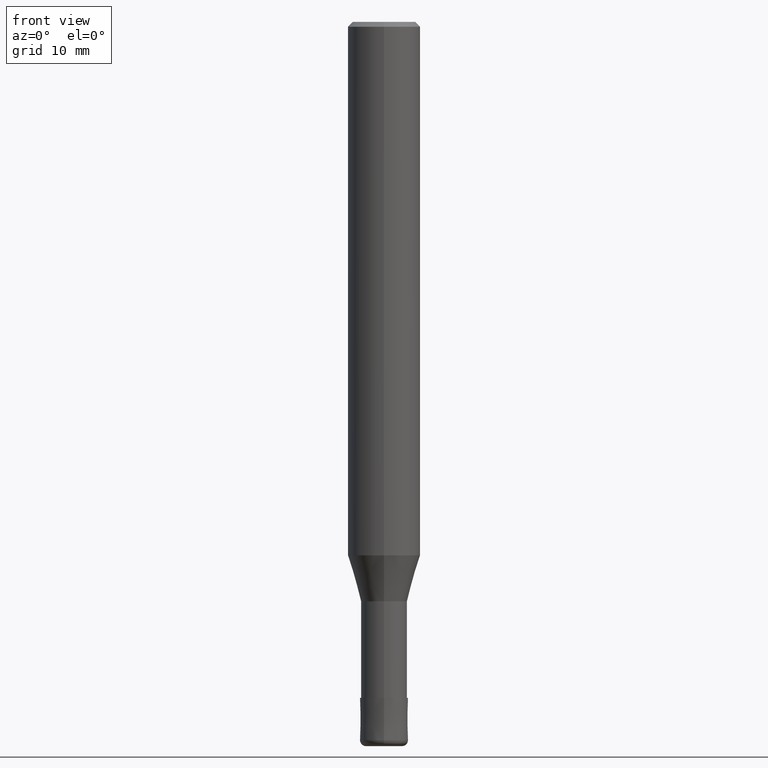
[diagram: clean part render]
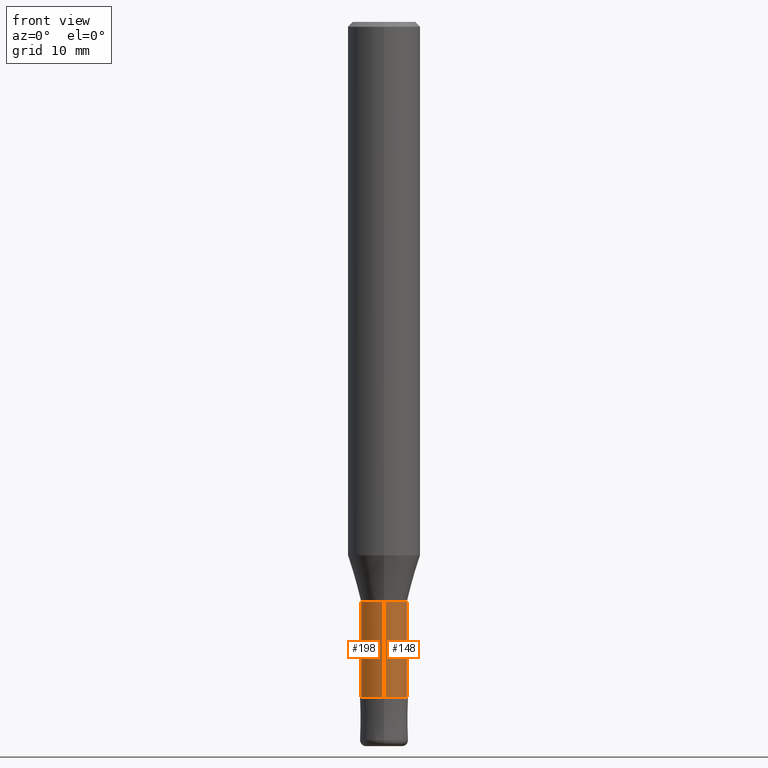
[diagram: same view with one multi-face feature highlighted, each face labeled with its STEP entity id]
A machine part, front view. The highlighted faces form ONE feature: a constant-radius fillet chain: 2 tangent blend faces with common blend radius 1.91 mm. The faces share edges in the B-rep.
Their STEP definitions:
[1] entity #148 (Cylinder):
#102=VERTEX_POINT('',#255);
#140=EDGE_CURVE('',#190,#182,#297,.T.);
#148=ADVANCED_FACE('',(#306),#307,.T.);
#154=VERTEX_POINT('',#313);
#180=EDGE_CURVE('',#190,#154,#342,.T.);
#182=VERTEX_POINT('',#344);
#190=VERTEX_POINT('',#353);
#192=EDGE_CURVE('',#154,#102,#355,.T.);
#200=EDGE_CURVE('',#102,#182,#364,.T.);
#255=CARTESIAN_POINT('',(2.33893690548305E-016,-1.90995,-56.0));
#297=CIRCLE('',#469,1.90995);
#306=FACE_OUTER_BOUND('',#480,.T.);
#307=CYLINDRICAL_SURFACE('',#481,1.90995);
#313=CARTESIAN_POINT('',(0.0,1.90995,-56.0));
#342=LINE('',#527,#528);
#344=CARTESIAN_POINT('',(2.33893690548305E-016,-1.90995,-48.0));
#353=CARTESIAN_POINT('',(0.0,1.90995,-48.0));
#355=CIRCLE('',#542,1.90995);
#364=LINE('',#553,#554);
#469=AXIS2_PLACEMENT_3D('',#659,#660,#661);
#480=EDGE_LOOP('',(#672,#673,#674,#675));
#481=AXIS2_PLACEMENT_3D('',#676,#677,#678);
#527=CARTESIAN_POINT('',(-2.33893690548305E-016,1.90995,-52.0));
#528=VECTOR('',#719,1.0);
#542=AXIS2_PLACEMENT_3D('',#732,#733,#734);
#553=CARTESIAN_POINT('',(2.33893690548305E-016,-1.90995,-52.0));
#554=VECTOR('',#746,1.0);
#659=CARTESIAN_POINT('',(0.0,0.0,-48.0));
#660=DIRECTION('',(0.0,0.0,-1.0));
#661=DIRECTION('',(0.0,1.0,0.0));
#672=ORIENTED_EDGE('',*,*,#180,.F.);
#673=ORIENTED_EDGE('',*,*,#140,.T.);
#674=ORIENTED_EDGE('',*,*,#200,.F.);
#675=ORIENTED_EDGE('',*,*,#192,.F.);
#676=CARTESIAN_POINT('',(0.0,0.0,-52.0));
#677=DIRECTION('',(-0.0,-0.0,1.0));
#678=DIRECTION('',(0.0,1.0,0.0));
#719=DIRECTION('',(0.0,0.0,-1.0));
#732=CARTESIAN_POINT('',(0.0,0.0,-56.0));
#733=DIRECTION('',(0.0,0.0,-1.0));
#734=DIRECTION('',(0.0,1.0,0.0));
#746=DIRECTION('',(-0.0,-0.0,1.0));
[2] entity #198 (Cylinder):
#102=VERTEX_POINT('',#255);
#154=VERTEX_POINT('',#313);
#176=EDGE_CURVE('',#102,#154,#338,.T.);
#180=EDGE_CURVE('',#190,#154,#342,.T.);
#182=VERTEX_POINT('',#344);
#190=VERTEX_POINT('',#353);
#198=ADVANCED_FACE('',(#361),#362,.T.);
#200=EDGE_CURVE('',#102,#182,#364,.T.);
#220=EDGE_CURVE('',#182,#190,#387,.T.);
#255=CARTESIAN_POINT('',(2.33893690548305E-016,-1.90995,-56.0));
#313=CARTESIAN_POINT('',(0.0,1.90995,-56.0));
#338=CIRCLE('',#522,1.90995);
#342=LINE('',#527,#528);
#344=CARTESIAN_POINT('',(2.33893690548305E-016,-1.90995,-48.0));
#353=CARTESIAN_POINT('',(0.0,1.90995,-48.0));
#361=FACE_OUTER_BOUND('',#549,.T.);
#362=CYLINDRICAL_SURFACE('',#550,1.90995);
#364=LINE('',#553,#554);
#387=CIRCLE('',#584,1.90995);
#522=AXIS2_PLACEMENT_3D('',#716,#717,#718);
#527=CARTESIAN_POINT('',(-2.33893690548305E-016,1.90995,-52.0));
#528=VECTOR('',#719,1.0);
#549=EDGE_LOOP('',(#739,#740,#741,#742));
#550=AXIS2_PLACEMENT_3D('',#743,#744,#745);
#553=CARTESIAN_POINT('',(2.33893690548305E-016,-1.90995,-52.0));
#554=VECTOR('',#746,1.0);
#584=AXIS2_PLACEMENT_3D('',#779,#780,#781);
#716=CARTESIAN_POINT('',(0.0,0.0,-56.0));
#717=DIRECTION('',(0.0,0.0,-1.0));
#718=DIRECTION('',(0.0,1.0,0.0));
#719=DIRECTION('',(0.0,0.0,-1.0));
#739=ORIENTED_EDGE('',*,*,#180,.T.);
#740=ORIENTED_EDGE('',*,*,#176,.F.);
#741=ORIENTED_EDGE('',*,*,#200,.T.);
#742=ORIENTED_EDGE('',*,*,#220,.T.);
#743=CARTESIAN_POINT('',(0.0,0.0,-52.0));
#744=DIRECTION('',(-0.0,-0.0,1.0));
#745=DIRECTION('',(0.0,1.0,0.0));
#746=DIRECTION('',(-0.0,-0.0,1.0));
#779=CARTESIAN_POINT('',(0.0,0.0,-48.0));
#780=DIRECTION('',(0.0,0.0,-1.0));
#781=DIRECTION('',(0.0,1.0,0.0));